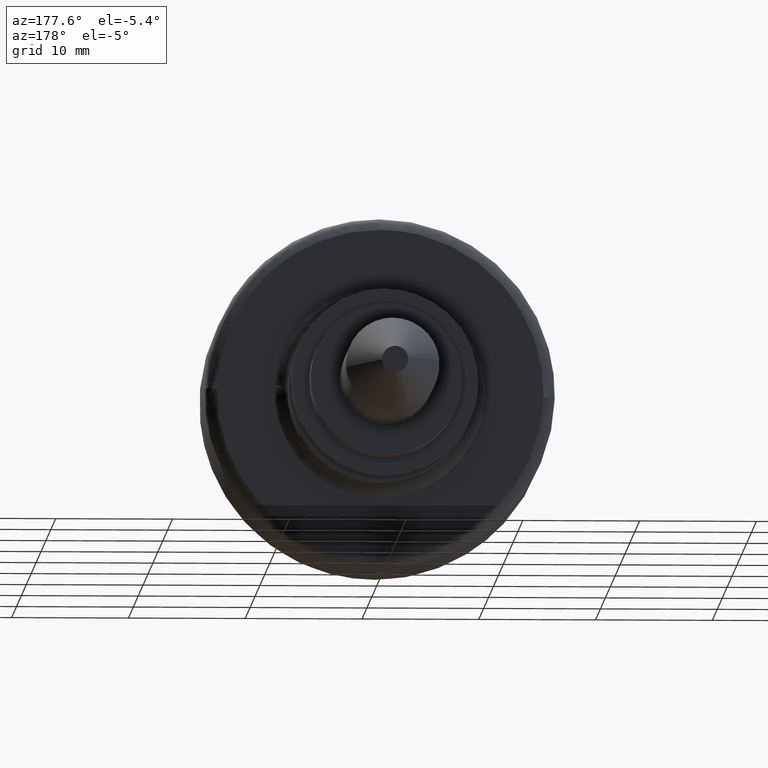
[diagram: clean part render]
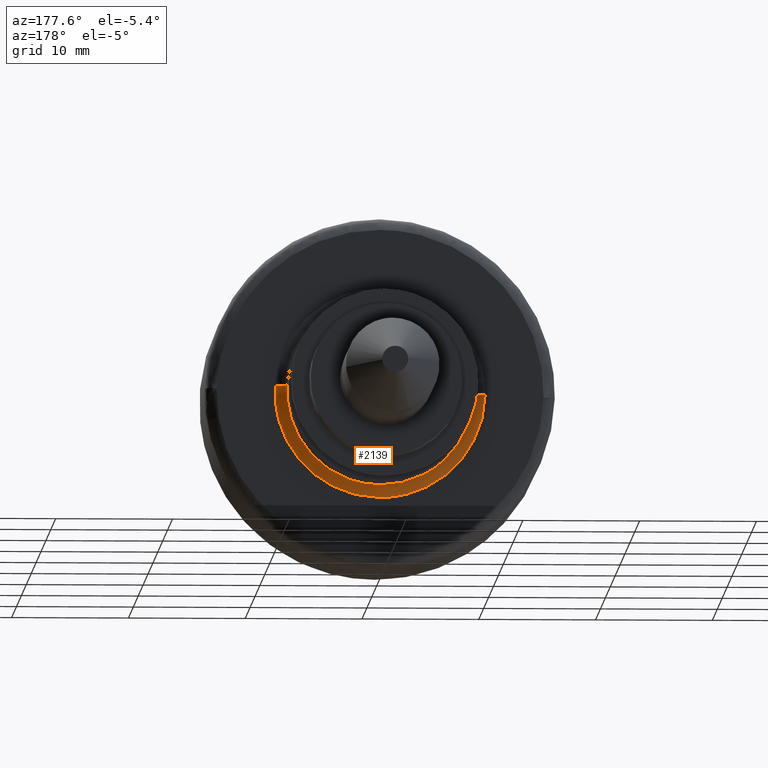
[diagram: same view with one face highlighted and labeled with its STEP entity id]
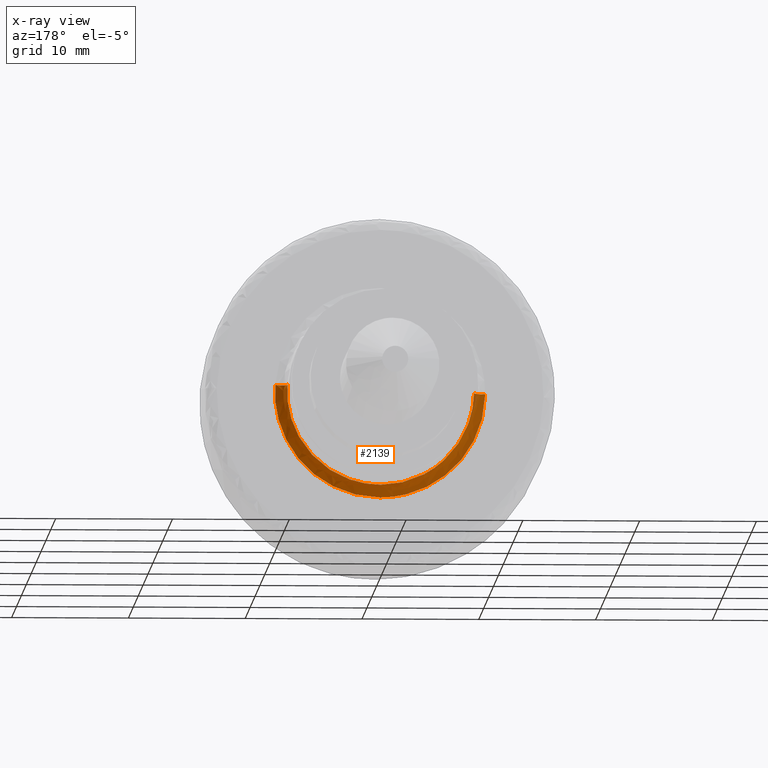
[diagram: x-ray of the same camera — body ghosted, the highlighted face saturated]
A machine part, auxiliary view. The second image highlights one B-rep face of the part: STEP entity #2139.
The next image is the same camera in x-ray: the body ghosted, the highlighted face saturated — about 2% of this face is hidden behind the body in this view.
In plain terms, the highlighted face is a freeform B-spline surface patch.
Its self-contained STEP definition (entity closure, byte-faithful):
#1846=CARTESIAN_POINT('',(-1.999999999999973,-6.999574689293740,-3.873751949848212));
#1847=VERTEX_POINT('',#1846);
#1848=CARTESIAN_POINT('',(-2.0,0.0,-8.0));
#1849=VERTEX_POINT('',#1848);
#1850=CARTESIAN_POINT('',(-1.999999999999973,-6.999574689293740,-3.873751949848213));
#1851=CARTESIAN_POINT('',(-2.000000000000000,-4.715998595126387,-8.0));
#1852=CARTESIAN_POINT('',(-2.0,0.0,-8.0));
#1860=(BOUNDED_CURVE()B_SPLINE_CURVE(2,(#1850,#1851,#1852),.UNSPECIFIED.,.F.,.U.)B_SPLINE_CURVE_WITH_KNOTS((3,3),(0.832484159081168,1.0),.UNSPECIFIED.)CURVE()GEOMETRIC_REPRESENTATION_ITEM()RATIONAL_B_SPLINE_CURVE((0.870495240970357,0.803742984604165,1.0))REPRESENTATION_ITEM(''));
#1861=EDGE_CURVE('',#1847,#1849,#1860,.T.);
#1863=CARTESIAN_POINT('',(-2.000000000090355,5.404720927236285,-5.898219366778826));
#1864=VERTEX_POINT('',#1863);
#1865=CARTESIAN_POINT('',(-2.0,0.0,-8.0));
#1866=CARTESIAN_POINT('',(-2.0,3.111028709200393,-8.0));
#1867=CARTESIAN_POINT('',(-2.000000000090355,5.404720927236285,-5.898219366778826));
#1875=(BOUNDED_CURVE()B_SPLINE_CURVE(2,(#1865,#1866,#1867),.UNSPECIFIED.,.F.,.U.)B_SPLINE_CURVE_WITH_KNOTS((3,3),(0.0,0.118415171527708),.UNSPECIFIED.)CURVE()GEOMETRIC_REPRESENTATION_ITEM()RATIONAL_B_SPLINE_CURVE((1.0,0.861267997019611,0.853959785473663))REPRESENTATION_ITEM(''));
#1876=EDGE_CURVE('',#1849,#1864,#1875,.T.);
#1945=CARTESIAN_POINT('',(-2.000000000340642,-7.980525390722380,0.557866012618961));
#1946=VERTEX_POINT('',#1945);
#1947=CARTESIAN_POINT('',(-2.000000000340642,-7.980525390722380,0.557866012618961));
#1948=CARTESIAN_POINT('',(-2.000000000000000,-8.0,0.279272927013173));
#1949=CARTESIAN_POINT('',(-2.0,-8.0,0.0));
#1950=CARTESIAN_POINT('',(-2.0,-8.0,-2.066059621071214));
#1951=CARTESIAN_POINT('',(-1.999999999999973,-6.999574689293740,-3.873751949848213));
#1959=(BOUNDED_CURVE()B_SPLINE_CURVE(2,(#1947,#1948,#1949,#1950,#1951),.UNSPECIFIED.,.F.,.U.)B_SPLINE_CURVE_WITH_KNOTS((3,2,3),(0.737833686534470,0.750000000000000,0.832484159081168),.UNSPECIFIED.)CURVE()GEOMETRIC_REPRESENTATION_ITEM()RATIONAL_B_SPLINE_CURVE((0.972879876385661,0.985746277151950,1.0,0.903363796582383,0.870495240970357))REPRESENTATION_ITEM(''));
#1960=EDGE_CURVE('',#1946,#1847,#1959,.T.);
#1996=CARTESIAN_POINT('',(-2.000000000339486,7.999368353630135,-0.100528319097965));
#1997=VERTEX_POINT('',#1996);
#1998=CARTESIAN_POINT('',(-2.000000000090355,5.404720927236285,-5.898219366778826));
#1999=CARTESIAN_POINT('',(-2.000000000190791,7.955886680005936,-3.560507825027636));
#2000=CARTESIAN_POINT('',(-2.000000000339486,7.999368353630135,-0.100528319097965));
#2008=(BOUNDED_CURVE()B_SPLINE_CURVE(2,(#1998,#1999,#2000),.UNSPECIFIED.,.F.,.U.)B_SPLINE_CURVE_WITH_KNOTS((3,3),(0.118415171527708,0.247784295920359),.UNSPECIFIED.)CURVE()GEOMETRIC_REPRESENTATION_ITEM()RATIONAL_B_SPLINE_CURVE((0.853959785473663,0.845975530446390,0.994854295640860))REPRESENTATION_ITEM(''));
#2009=EDGE_CURVE('',#1864,#1997,#2008,.T.);
#2044=CARTESIAN_POINT('',(-1.930462882457109,-7.982940164000940,0.558034370785872));
#2045=CARTESIAN_POINT('',(-1.930462882457109,-7.998910852533643,0.329566273462526));
#2046=CARTESIAN_POINT('',(-1.930462882457108,-8.001788797602575,0.100558736863972));
#2047=CARTESIAN_POINT('',(-1.930462882457109,-8.102347534466546,-7.901230060738604));
#2048=CARTESIAN_POINT('',(-1.930462882457108,-0.100558736863972,-8.001788797602575));
#2049=CARTESIAN_POINT('',(-1.930462882457109,7.901230060738602,-8.102347534466546));
#2050=CARTESIAN_POINT('',(-1.930462882457108,8.001788797602575,-0.100558736863973));
#2051=CARTESIAN_POINT('',(-3.077537380434425,-7.903177004204340,0.552458657605694));
#2052=CARTESIAN_POINT('',(-3.077537380434425,-7.918988118375302,0.326273345444313));
#2053=CARTESIAN_POINT('',(-3.077537380434425,-7.921837307874517,0.099553983924247));
#2054=CARTESIAN_POINT('',(-3.077537380434424,-8.021391291798761,-7.822283323950267));
#2055=CARTESIAN_POINT('',(-3.077537380434425,-0.099553983924248,-7.921837307874517));
#2056=CARTESIAN_POINT('',(-3.077537380434424,7.822283323950267,-8.021391291798764));
#2057=CARTESIAN_POINT('',(-3.077537380434425,7.921837307874517,-0.099553983924248));
#2058=CARTESIAN_POINT('',(-2.997579351180474,-9.047459137396228,0.632447827896207));
#2059=CARTESIAN_POINT('',(-2.997579351180475,-9.065559505046146,0.373513684301719));
#2060=CARTESIAN_POINT('',(-2.997579351180474,-9.068821221891806,0.113968167616702));
#2061=CARTESIAN_POINT('',(-2.997579351180475,-9.182789389508510,-8.954853054275105));
#2062=CARTESIAN_POINT('',(-2.997579351180474,-0.113968167616703,-9.068821221891806));
#2063=CARTESIAN_POINT('',(-2.997579351180475,8.954853054275105,-9.182789389508512));
#2064=CARTESIAN_POINT('',(-2.997579351180474,9.068821221891806,-0.113968167616703));
#2072=(BOUNDED_SURFACE()B_SPLINE_SURFACE(2,2,((#2044,#2051,#2058),(#2045,#2052,#2059),(#2046,#2053,#2060),(#2047,#2054,#2061),(#2048,#2055,#2062),(#2049,#2056,#2063),(#2050,#2057,#2064)),.UNSPECIFIED.,.F.,.F.,.U.)B_SPLINE_SURFACE_WITH_KNOTS((3,2,2,3),(3,3),(0.0,0.601075484383022,15.627976924728539,30.654878365074062),(0.0,1.822374170355887),.UNSPECIFIED.)GEOMETRIC_REPRESENTATION_ITEM()RATIONAL_B_SPLINE_SURFACE(((0.889999303352454,0.584039722868744,0.889999383380160),(0.899812874413934,0.590479632766999,0.899812955324064),(0.910479798596171,0.597479534249830,0.910479880465459),(0.643806439720715,0.422481830288235,0.643806497611043),(0.910479798596171,0.597479534249830,0.910479880465459),(0.643806439720715,0.422481830288235,0.643806497611043),(0.910479798596171,0.597479534249830,0.910479880465459)))REPRESENTATION_ITEM('')SURFACE());
#2073=CARTESIAN_POINT('',(-3.0,0.0,-9.0));
#2074=VERTEX_POINT('',#2073);
#2075=CARTESIAN_POINT('',(-3.0,-8.978091063795649,0.627599264229287));
#2076=VERTEX_POINT('',#2075);
#2077=CARTESIAN_POINT('',(-3.0,0.0,-9.0));
#2078=CARTESIAN_POINT('',(-3.000000000000000,-9.0,-9.0));
#2079=CARTESIAN_POINT('',(-3.0,-9.0,0.0));
#2080=CARTESIAN_POINT('',(-3.000000000000000,-9.0,0.314182042976286));
#2081=CARTESIAN_POINT('',(-3.000000000000000,-8.978091063795649,0.627599264229287));
#2089=(BOUNDED_CURVE()B_SPLINE_CURVE(2,(#2077,#2078,#2079,#2080,#2081),.UNSPECIFIED.,.F.,.U.)B_SPLINE_CURVE_WITH_KNOTS((3,2,3),(0.0,0.250000000000000,0.262166313468831),.UNSPECIFIED.)CURVE()GEOMETRIC_REPRESENTATION_ITEM()RATIONAL_B_SPLINE_CURVE((1.0,0.707106781186547,1.0,0.985746277148083,0.972879876378680))REPRESENTATION_ITEM(''));
#2090=EDGE_CURVE('',#2074,#2076,#2089,.T.);
#2091=ORIENTED_EDGE('',*,*,#2090,.F.);
#2092=CARTESIAN_POINT('',(-3.0,8.999289397165907,-0.113094359048449));
#2093=VERTEX_POINT('',#2092);
#2094=CARTESIAN_POINT('',(-3.000000000000000,8.999289397165907,-0.113094359048449));
#2095=CARTESIAN_POINT('',(-3.0,8.887607368955143,-9.000000000000002));
#2096=CARTESIAN_POINT('',(-3.0,0.0,-9.0));
#2104=(BOUNDED_CURVE()B_SPLINE_CURVE(2,(#2094,#2095,#2096),.UNSPECIFIED.,.F.,.U.)B_SPLINE_CURVE_WITH_KNOTS((3,3),(0.752215704082441,1.0),.UNSPECIFIED.)CURVE()GEOMETRIC_REPRESENTATION_ITEM()RATIONAL_B_SPLINE_CURVE((0.994854295634418,0.709702639989124,1.0))REPRESENTATION_ITEM(''));
#2105=EDGE_CURVE('',#2093,#2074,#2104,.T.);
#2106=ORIENTED_EDGE('',*,*,#2105,.F.);
#2107=CARTESIAN_POINT('',(-2.000000000339486,7.999368353630135,-0.100528319097965));
#2108=CARTESIAN_POINT('',(-2.999999998665705,7.999368354309442,-0.100528319075353));
#2109=CARTESIAN_POINT('',(-3.000000000000000,8.999289397165907,-0.113094359048449));
#2117=(BOUNDED_CURVE()B_SPLINE_CURVE(2,(#2107,#2108,#2109),.UNSPECIFIED.,.F.,.U.)B_SPLINE_CURVE_WITH_KNOTS((3,3),(-1.725134642585533,-0.274865358086500),.UNSPECIFIED.)CURVE()GEOMETRIC_REPRESENTATION_ITEM()RATIONAL_B_SPLINE_CURVE((0.883342149404629,0.624617224495900,0.883342149164851))REPRESENTATION_ITEM(''));
#2118=EDGE_CURVE('',#1997,#2093,#2117,.T.);
#2119=ORIENTED_EDGE('',*,*,#2118,.F.);
#2120=ORIENTED_EDGE('',*,*,#2009,.F.);
#2121=ORIENTED_EDGE('',*,*,#1876,.F.);
#2122=ORIENTED_EDGE('',*,*,#1861,.F.);
#2123=ORIENTED_EDGE('',*,*,#1960,.F.);
#2124=CARTESIAN_POINT('',(-2.000000000340643,-7.980525390722380,0.557866012618961));
#2125=CARTESIAN_POINT('',(-2.999999998474273,-7.980525391403083,0.557866012651046));
#2126=CARTESIAN_POINT('',(-3.0,-8.978091063795649,0.627599264229287));
#2134=(BOUNDED_CURVE()B_SPLINE_CURVE(2,(#2124,#2125,#2126),.UNSPECIFIED.,.F.,.U.)B_SPLINE_CURVE_WITH_KNOTS((3,3),(-1.725134642583161,-0.274865358282810),.UNSPECIFIED.)CURVE()GEOMETRIC_REPRESENTATION_ITEM()RATIONAL_B_SPLINE_CURVE((0.863472075129033,0.610566960255941,0.863472074827009))REPRESENTATION_ITEM(''));
#2135=EDGE_CURVE('',#1946,#2076,#2134,.T.);
#2136=ORIENTED_EDGE('',*,*,#2135,.T.);
#2137=EDGE_LOOP('',(#2091,#2106,#2119,#2120,#2121,#2122,#2123,#2136));
#2138=FACE_OUTER_BOUND('',#2137,.T.);
#2139=ADVANCED_FACE('',(#2138),#2072,.F.);